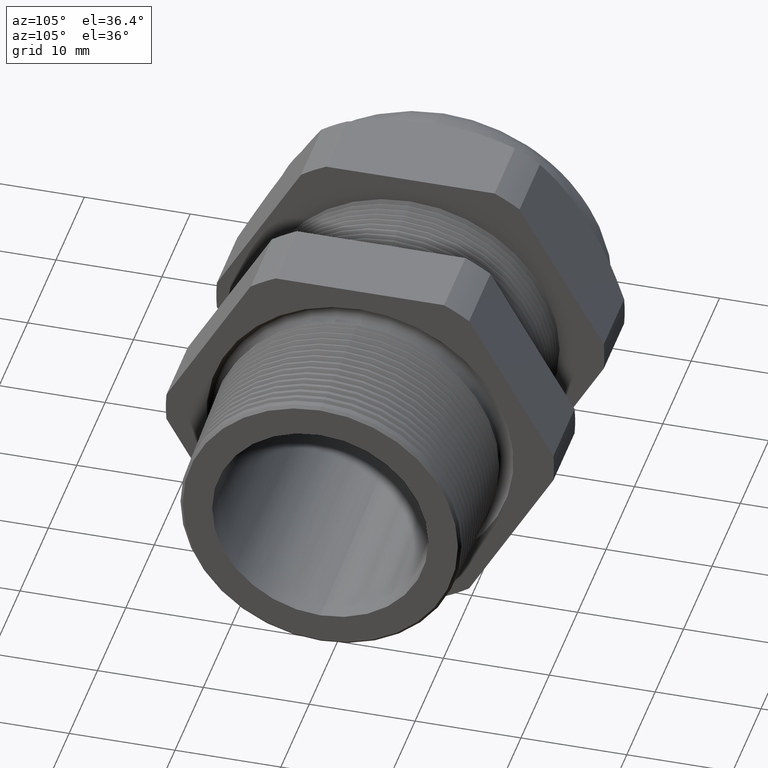
[diagram: clean part render]
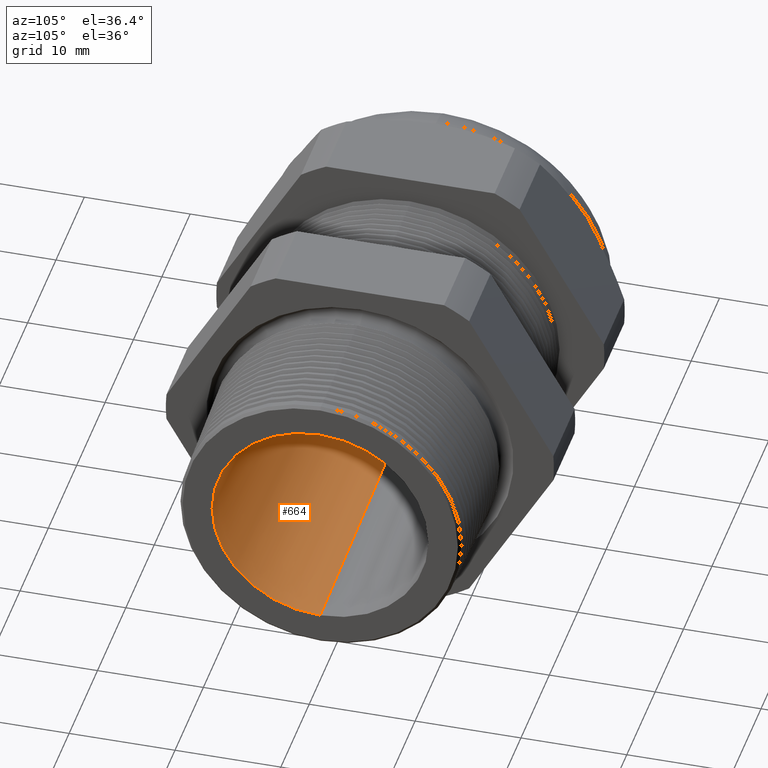
[diagram: same view with one face highlighted and labeled with its STEP entity id]
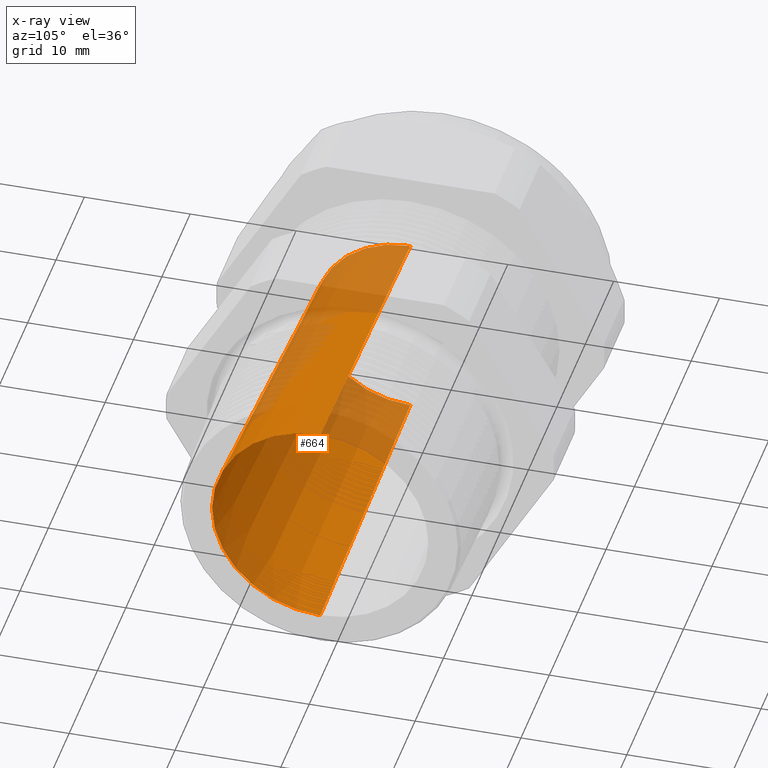
[diagram: x-ray of the same camera — body ghosted, the highlighted face saturated]
A machine part, auxiliary view. The second image highlights one B-rep face of the part: STEP entity #664.
The next image is the same camera in x-ray: the body ghosted, the highlighted face saturated — about 28% of this face is hidden behind the body in this view.
In plain terms, the highlighted conical surface has half-angle 2.165 deg.
Its self-contained STEP definition (entity closure, byte-faithful):
#611 = EDGE_LOOP ( 'NONE', ( #665, #669, #672, #675 ) ) ;
#664 = ADVANCED_FACE ( 'NONE', ( #3491 ), #3487, .F. ) ;
#665 = ORIENTED_EDGE ( 'NONE', *, *, #666, .F. ) ;
#666 = EDGE_CURVE ( 'NONE', #667, #668, #3481, .T. ) ;
#667 = VERTEX_POINT ( 'NONE', #3477 ) ;
#668 = VERTEX_POINT ( 'NONE', #3476 ) ;
#669 = ORIENTED_EDGE ( 'NONE', *, *, #670, .T. ) ;
#670 = EDGE_CURVE ( 'NONE', #667, #671, #3475, .T. ) ;
#671 = VERTEX_POINT ( 'NONE', #3471 ) ;
#672 = ORIENTED_EDGE ( 'NONE', *, *, #673, .T. ) ;
#673 = EDGE_CURVE ( 'NONE', #671, #674, #3470, .T. ) ;
#674 = VERTEX_POINT ( 'NONE', #3465 ) ;
#675 = ORIENTED_EDGE ( 'NONE', *, *, #676, .F. ) ;
#676 = EDGE_CURVE ( 'NONE', #668, #674, #3464, .T. ) ;
#3462 = VECTOR ( 'NONE', #3523, 39.37007874015748100 ) ;
#3463 = CARTESIAN_POINT ( 'NONE',  ( -1.010314960629920900, 0.0000000000000000000, -0.3549999999999999800 ) ) ;
#3464 = LINE ( 'NONE', #3463, #3462 ) ;
#3465 = CARTESIAN_POINT ( 'NONE',  ( 0.2400000000000001000, 0.0000000000000000000, -0.4022593505041728300 ) ) ;
#3466 = DIRECTION ( 'NONE',  ( 0.0000000000000000000, 0.0000000000000000000, -1.000000000000000000 ) ) ;
#3467 = DIRECTION ( 'NONE',  ( 1.000000000000000000, 0.0000000000000000000, 0.0000000000000000000 ) ) ;
#3468 = CARTESIAN_POINT ( 'NONE',  ( 0.2400000000000001000, 0.0000000000000000000, 0.0000000000000000000 ) ) ;
#3469 = AXIS2_PLACEMENT_3D ( 'NONE', #3468, #3467, #3466 ) ;
#3470 = CIRCLE ( 'NONE', #3469, 0.4022593505041728300 ) ;
#3471 = CARTESIAN_POINT ( 'NONE',  ( 0.2400000000000001000, 4.926256260220285200E-017, 0.4022593505041728300 ) ) ;
#3472 = DIRECTION ( 'NONE',  ( 0.9992864217600848600, 4.625611552514132300E-018, 0.03777098470950696100 ) ) ;
#3473 = VECTOR ( 'NONE', #3472, 39.37007874015748100 ) ;
#3474 = CARTESIAN_POINT ( 'NONE',  ( -1.010314960629920900, 4.347496136973103500E-017, 0.3549999999999999800 ) ) ;
#3475 = LINE ( 'NONE', #3474, #3473 ) ;
#3476 = CARTESIAN_POINT ( 'NONE',  ( -1.010314960629920900, 0.0000000000000000000, -0.3549999999999999800 ) ) ;
#3477 = CARTESIAN_POINT ( 'NONE',  ( -1.010314960629920900, 4.347496136973103500E-017, 0.3549999999999999800 ) ) ;
#3478 = DIRECTION ( 'NONE',  ( 0.0000000000000000000, 0.0000000000000000000, -1.000000000000000000 ) ) ;
#3479 = DIRECTION ( 'NONE',  ( 1.000000000000000000, 0.0000000000000000000, 0.0000000000000000000 ) ) ;
#3480 = AXIS2_PLACEMENT_3D ( 'NONE', #3486, #3479, #3478 ) ;
#3481 = CIRCLE ( 'NONE', #3480, 0.3549999999999999800 ) ;
#3482 = DIRECTION ( 'NONE',  ( 0.0000000000000000000, 0.0000000000000000000, -1.000000000000000000 ) ) ;
#3483 = DIRECTION ( 'NONE',  ( 1.000000000000000000, 0.0000000000000000000, 0.0000000000000000000 ) ) ;
#3484 = CARTESIAN_POINT ( 'NONE',  ( -1.010314960629920900, 0.0000000000000000000, 0.0000000000000000000 ) ) ;
#3485 = AXIS2_PLACEMENT_3D ( 'NONE', #3484, #3483, #3482 ) ;
#3486 = CARTESIAN_POINT ( 'NONE',  ( -1.010314960629920900, 0.0000000000000000000, 0.0000000000000000000 ) ) ;
#3487 = CONICAL_SURFACE ( 'NONE', #3485, 0.3549999999999999800, 0.03777997145892175700 ) ;
#3491 = FACE_OUTER_BOUND ( 'NONE', #611, .T. ) ;
#3523 = DIRECTION ( 'NONE',  ( 0.9992864217600848600, 0.0000000000000000000, -0.03777098470950696100 ) ) ;